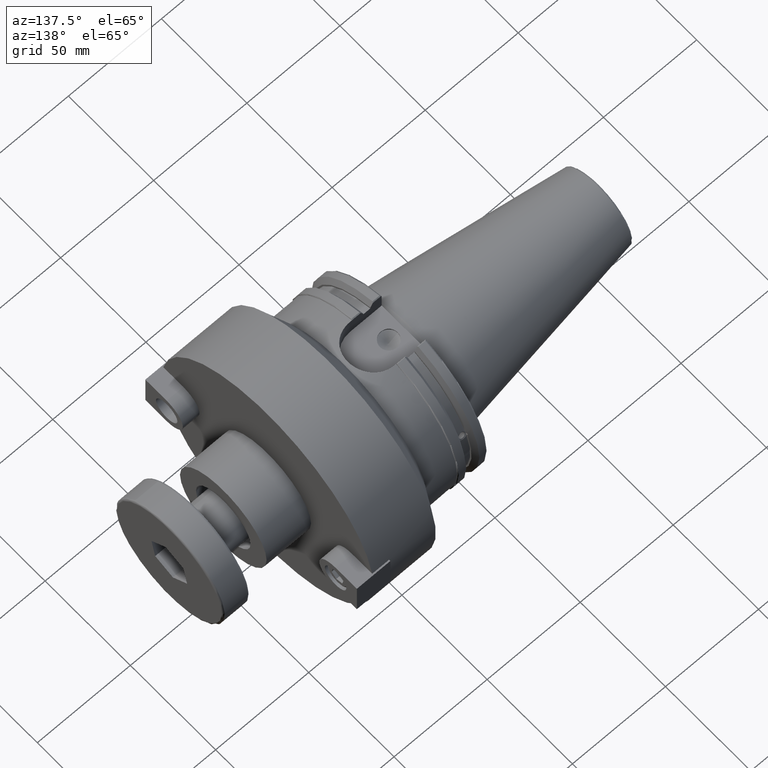
[diagram: clean part render]
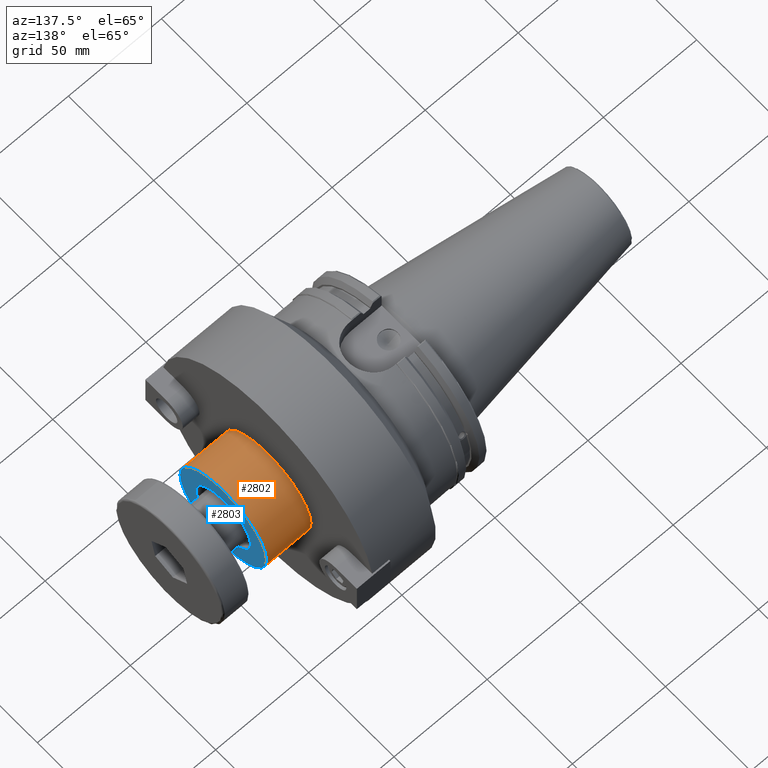
[diagram: same view with the hole feature highlighted: cylindrical wall and planar end face, labeled with their STEP entity ids]
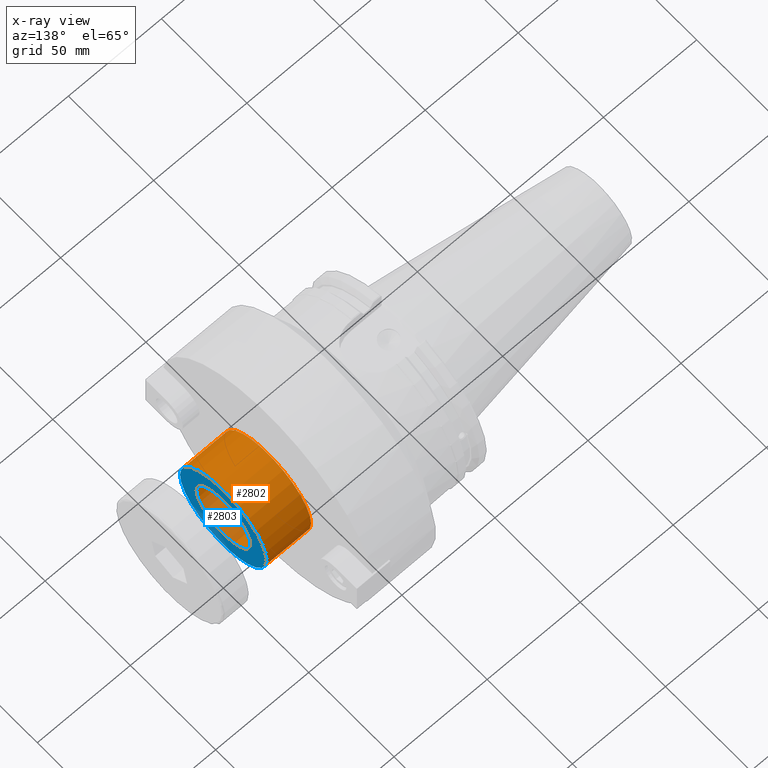
[diagram: x-ray of the same camera — body ghosted, the hole faces saturated]
A machine part, auxiliary view. The highlighted faces form one hole feature of diameter 50.8 mm: the cylindrical wall (entity #2802, orange) and its adjacent planar end face (entity #2803, blue) — they share a circular edge in the B-rep.
The next image is the same camera in x-ray (body ghosted, the hole faces saturated) — the bore reads through the body.
Wall:
#563=CYLINDRICAL_SURFACE('',#3129,25.4);
#667=CIRCLE('',#3128,25.4);
#668=CIRCLE('',#3130,25.4);
#807=FACE_OUTER_BOUND('',#954,.T.);
#954=EDGE_LOOP('',(#2118,#2119,#2120,#2121));
#1133=LINE('',#4504,#1292);
#1292=VECTOR('',#3557,25.4);
#1464=VERTEX_POINT('',#4499);
#1465=VERTEX_POINT('',#4502);
#1718=EDGE_CURVE('',#1464,#1464,#667,.T.);
#1719=EDGE_CURVE('',#1465,#1465,#668,.T.);
#1720=EDGE_CURVE('',#1465,#1464,#1133,.T.);
#2118=ORIENTED_EDGE('',*,*,#1719,.F.);
#2119=ORIENTED_EDGE('',*,*,#1720,.T.);
#2120=ORIENTED_EDGE('',*,*,#1718,.T.);
#2121=ORIENTED_EDGE('',*,*,#1720,.F.);
#2802=ADVANCED_FACE('',(#807),#563,.T.);
#3128=AXIS2_PLACEMENT_3D('',#4500,#3551,#3552);
#3129=AXIS2_PLACEMENT_3D('',#4501,#3553,#3554);
#3130=AXIS2_PLACEMENT_3D('',#4503,#3555,#3556);
#3551=DIRECTION('center_axis',(1.,0.,0.));
#3552=DIRECTION('ref_axis',(0.,0.,-1.));
#3553=DIRECTION('center_axis',(1.,0.,0.));
#3554=DIRECTION('ref_axis',(0.,1.,0.));
#3555=DIRECTION('center_axis',(1.,0.,0.));
#3556=DIRECTION('ref_axis',(0.,0.,-1.));
#3557=DIRECTION('',(-1.,0.,0.));
#4499=CARTESIAN_POINT('',(76.2,-25.4,-3.11060286983428E-15));
#4500=CARTESIAN_POINT('Origin',(76.2,0.,0.));
#4501=CARTESIAN_POINT('Origin',(88.135,0.,0.));
#4502=CARTESIAN_POINT('',(100.07,-25.4,-3.11060286983428E-15));
#4503=CARTESIAN_POINT('Origin',(100.07,0.,0.));
#4504=CARTESIAN_POINT('',(88.135,-25.4,-3.11060286983428E-15));
End face:
#618=FACE_BOUND('',#956,.T.);
#668=CIRCLE('',#3130,25.4);
#669=CIRCLE('',#3132,16.);
#808=FACE_OUTER_BOUND('',#955,.T.);
#955=EDGE_LOOP('',(#2122));
#956=EDGE_LOOP('',(#2123));
#1465=VERTEX_POINT('',#4502);
#1466=VERTEX_POINT('',#4506);
#1719=EDGE_CURVE('',#1465,#1465,#668,.T.);
#1721=EDGE_CURVE('',#1466,#1466,#669,.T.);
#2122=ORIENTED_EDGE('',*,*,#1719,.T.);
#2123=ORIENTED_EDGE('',*,*,#1721,.F.);
#2719=PLANE('',#3131);
#2803=ADVANCED_FACE('',(#808,#618),#2719,.T.);
#3130=AXIS2_PLACEMENT_3D('',#4503,#3555,#3556);
#3131=AXIS2_PLACEMENT_3D('',#4505,#3558,#3559);
#3132=AXIS2_PLACEMENT_3D('',#4507,#3560,#3561);
#3555=DIRECTION('center_axis',(1.,0.,0.));
#3556=DIRECTION('ref_axis',(0.,0.,-1.));
#3558=DIRECTION('center_axis',(1.,0.,0.));
#3559=DIRECTION('ref_axis',(0.,0.,-1.));
#3560=DIRECTION('center_axis',(1.,0.,0.));
#3561=DIRECTION('ref_axis',(0.,0.,-1.));
#4502=CARTESIAN_POINT('',(100.07,-25.4,-3.11060286983428E-15));
#4503=CARTESIAN_POINT('Origin',(100.07,0.,0.));
#4505=CARTESIAN_POINT('Origin',(100.07,16.,0.));
#4506=CARTESIAN_POINT('',(100.07,-16.,-1.95943487863576E-15));
#4507=CARTESIAN_POINT('Origin',(100.07,0.,0.));